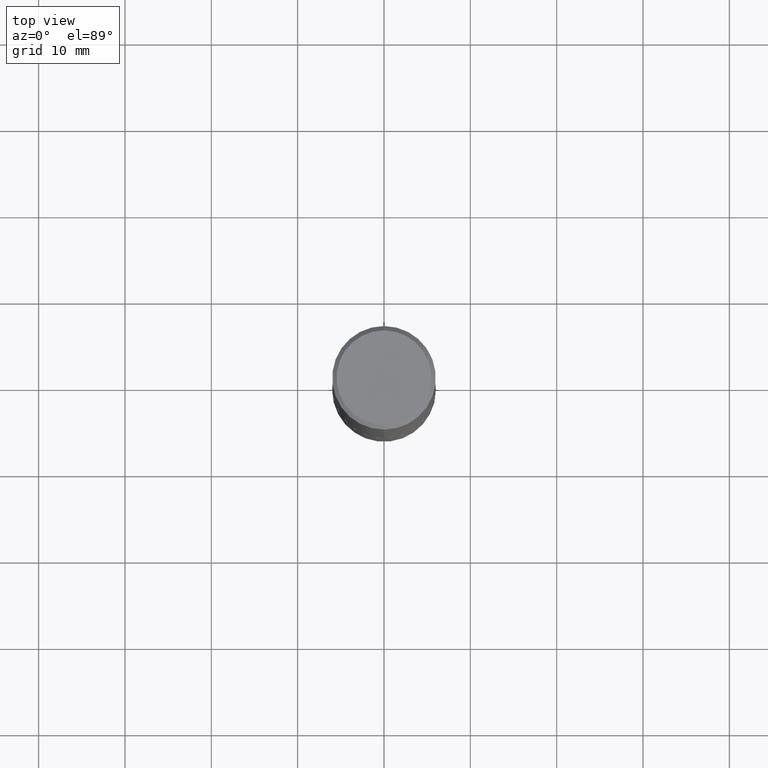
[diagram: clean part render]
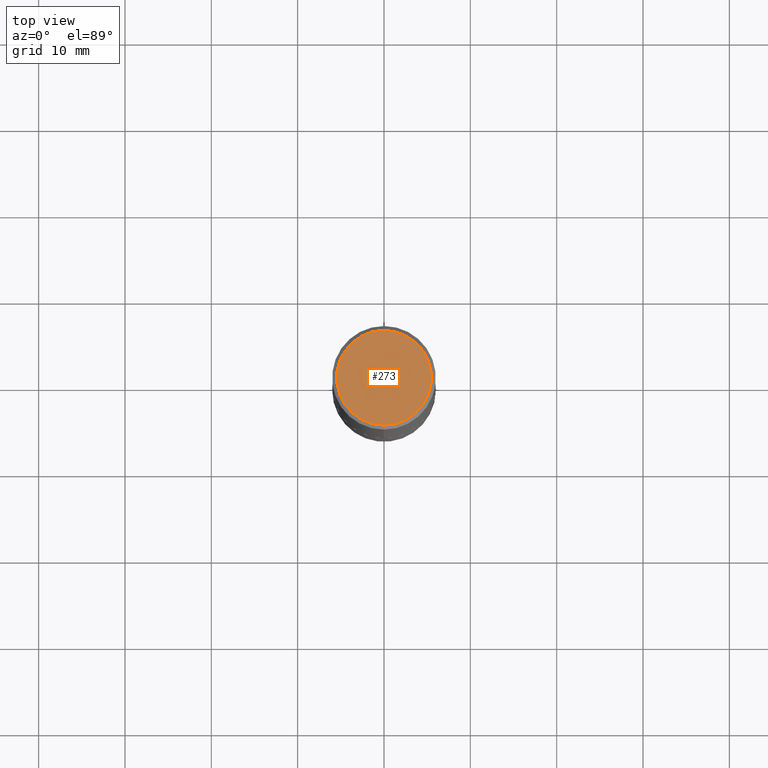
[diagram: same view with one face highlighted and labeled with its STEP entity id]
A machine part, top view. The second image highlights one B-rep face of the part: STEP entity #273.
In plain terms, the highlighted planar face has unit normal (0, -0, -1).
Its self-contained STEP definition (entity closure, byte-faithful):
#1 = CARTESIAN_POINT ( 'NONE',  ( 1.509716530915772493E-15, 0.2162000000000002531, -8.528219716884274553E-16 ) ) ;
#25 = CIRCLE ( 'NONE', #268, 0.2162000000000002531 ) ;
#33 = DIRECTION ( 'NONE',  ( 2.446838791383406475E-29, -3.489519442064507417E-15, -1.000000000000000000 ) ) ;
#35 = ORIENTED_EDGE ( 'NONE', *, *, #285, .T. ) ;
#45 = CARTESIAN_POINT ( 'NONE',  ( 4.814785055848277304E-45, -6.866527586905309216E-31, -1.967757366281604609E-16 ) ) ;
#61 = FACE_OUTER_BOUND ( 'NONE', #253, .T. ) ;
#76 = ORIENTED_EDGE ( 'NONE', *, *, #244, .T. ) ;
#90 = VERTEX_POINT ( 'NONE', #295 ) ;
#114 = VERTEX_POINT ( 'NONE', #266 ) ;
#147 = DIRECTION ( 'NONE',  ( -2.446838791383407035E-29, 3.489519442064507417E-15, 1.000000000000000000 ) ) ;
#194 = DIRECTION ( 'NONE',  ( 6.982962677686265922E-15, 1.000000000000000000, -3.489519442064507417E-15 ) ) ;
#202 = DIRECTION ( 'NONE',  ( -6.982962677686265922E-15, -1.000000000000000000, 3.489519442064507417E-15 ) ) ;
#205 = AXIS2_PLACEMENT_3D ( 'NONE', #45, #401, #202 ) ;
#208 = CIRCLE ( 'NONE', #205, 0.2162000000000002531 ) ;
#244 = EDGE_CURVE ( 'NONE', #90, #114, #25, .T. ) ;
#253 = EDGE_LOOP ( 'NONE', ( #76, #35 ) ) ;
#266 = CARTESIAN_POINT ( 'NONE',  ( -1.551844647095920733E-15, -0.2162000000000002531, 5.576583667461869735E-16 ) ) ;
#268 = AXIS2_PLACEMENT_3D ( 'NONE', #322, #147, #289 ) ;
#273 = ADVANCED_FACE ( 'NONE', ( #61 ), #328, .F. ) ;
#285 = EDGE_CURVE ( 'NONE', #114, #90, #208, .T. ) ;
#289 = DIRECTION ( 'NONE',  ( -6.982962677686265922E-15, -1.000000000000000000, 3.489519442064507417E-15 ) ) ;
#295 = CARTESIAN_POINT ( 'NONE',  ( 1.579546157692634608E-15, 0.2162000000000002531, -9.512098400025077474E-16 ) ) ;
#322 = CARTESIAN_POINT ( 'NONE',  ( 4.814785055848277304E-45, -6.866527586905309216E-31, -1.967757366281604609E-16 ) ) ;
#328 = PLANE ( 'NONE',  #389 ) ;
#389 = AXIS2_PLACEMENT_3D ( 'NONE', #1, #33, #194 ) ;
#401 = DIRECTION ( 'NONE',  ( -2.446838791383407035E-29, 3.489519442064507417E-15, 1.000000000000000000 ) ) ;